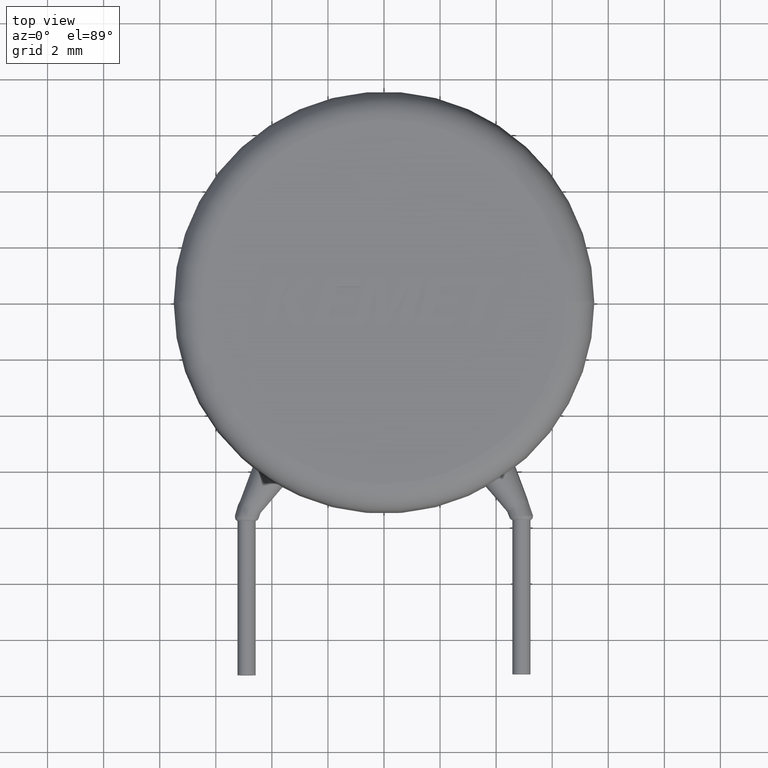
[diagram: clean part render]
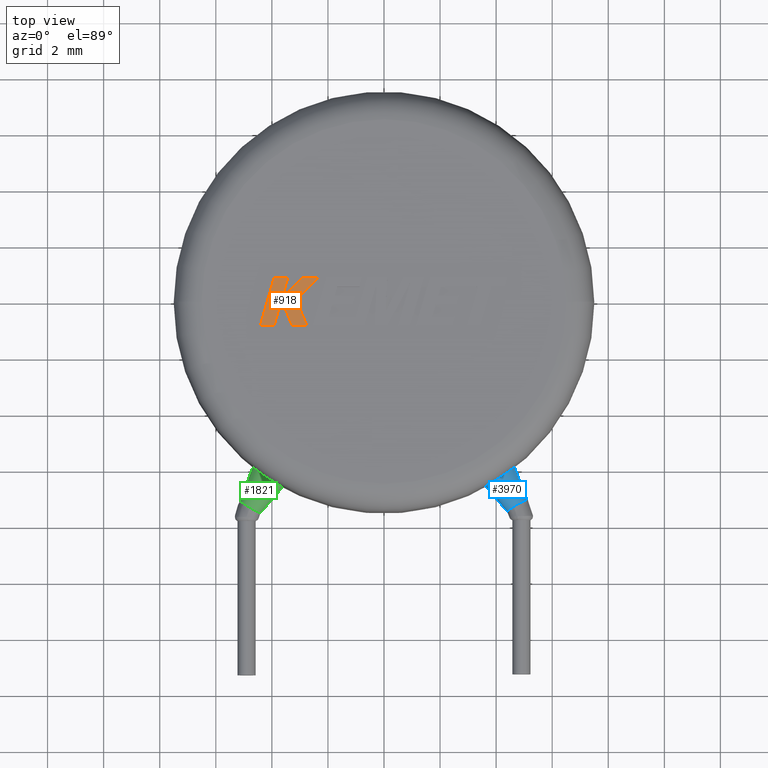
[diagram: same view with three faces highlighted in distinct colors, each labeled with its STEP entity id]
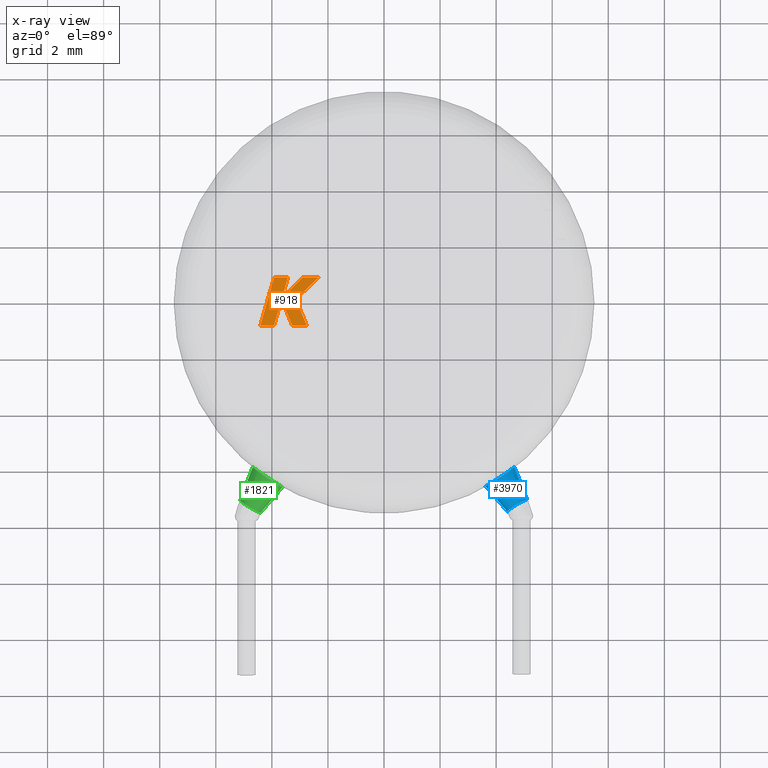
[diagram: x-ray of the same camera — body ghosted, the three highlighted faces saturated]
A machine part, top view with three faces highlighted in distinct colors.
The next image is the same camera in x-ray (body ghosted, the three faces saturated) — at least one of them is partly hidden behind the body in this view.
Their STEP definitions:

[orange] entity #918 — the highlighted planar face has unit normal (0, 0, -1).
#116 = VECTOR ( 'NONE', #1157, 1000.000000000000000 ) ;
#139 = CARTESIAN_POINT ( 'NONE',  ( -2.751700419524595500, -0.8679000000000538500, 5.004999999999999900 ) ) ;
#189 = VERTEX_POINT ( 'NONE', #1183 ) ;
#230 = EDGE_CURVE ( 'NONE', #3429, #518, #3758, .T. ) ;
#235 = DIRECTION ( 'NONE',  ( -1.000000000000000000, -0.0000000000000000000, -0.0000000000000000000 ) ) ;
#260 = ORIENTED_EDGE ( 'NONE', *, *, #230, .T. ) ;
#271 = ORIENTED_EDGE ( 'NONE', *, *, #1103, .T. ) ;
#360 = CARTESIAN_POINT ( 'NONE',  ( -3.654154969187255900, 0.07042741620789895500, 5.004999999999999900 ) ) ;
#383 = LINE ( 'NONE', #3003, #1513 ) ;
#413 = VERTEX_POINT ( 'NONE', #3333 ) ;
#491 = PLANE ( 'NONE',  #2290 ) ;
#518 = VERTEX_POINT ( 'NONE', #3739 ) ;
#526 = VERTEX_POINT ( 'NONE', #2419 ) ;
#584 = DIRECTION ( 'NONE',  ( 0.2755520632520612200, 0.9612861490927308000, 0.0000000000000000000 ) ) ;
#595 = CARTESIAN_POINT ( 'NONE',  ( -3.654154969187255900, 0.07042741620789895500, 5.004999999999999900 ) ) ;
#660 = EDGE_CURVE ( 'NONE', #3591, #2743, #3189, .T. ) ;
#673 = ORIENTED_EDGE ( 'NONE', *, *, #1021, .T. ) ;
#688 = CARTESIAN_POINT ( 'NONE',  ( -2.333900013164823800, 0.8602294998000967800, 5.004999999999999900 ) ) ;
#726 = ORIENTED_EDGE ( 'NONE', *, *, #660, .T. ) ;
#753 = ORIENTED_EDGE ( 'NONE', *, *, #3652, .T. ) ;
#843 = VECTOR ( 'NONE', #3626, 1000.000000000000100 ) ;
#889 = VECTOR ( 'NONE', #2910, 1000.000000000000100 ) ;
#918 = ADVANCED_FACE ( 'NONE', ( #1306 ), #491, .F. ) ;
#1021 = EDGE_CURVE ( 'NONE', #2743, #1027, #3947, .T. ) ;
#1023 = VECTOR ( 'NONE', #3730, 1000.000000000000000 ) ;
#1025 = CARTESIAN_POINT ( 'NONE',  ( -3.923099004398354200, -0.8679000000000538500, 5.004999999999999900 ) ) ;
#1027 = VERTEX_POINT ( 'NONE', #1997 ) ;
#1103 = EDGE_CURVE ( 'NONE', #526, #2211, #383, .T. ) ;
#1157 = DIRECTION ( 'NONE',  ( 1.000000000000000000, 2.209235782087067200E-016, 0.0000000000000000000 ) ) ;
#1183 = CARTESIAN_POINT ( 'NONE',  ( -3.140642792701694700, 0.07042741620791977100, 5.004999999999999900 ) ) ;
#1186 = EDGE_CURVE ( 'NONE', #413, #526, #2436, .T. ) ;
#1217 = EDGE_CURVE ( 'NONE', #1462, #189, #3177, .T. ) ;
#1243 = ORIENTED_EDGE ( 'NONE', *, *, #3080, .T. ) ;
#1266 = CARTESIAN_POINT ( 'NONE',  ( -3.277513515972580100, -0.8679000000000538500, 5.004999999999999900 ) ) ;
#1306 = FACE_OUTER_BOUND ( 'NONE', #1819, .T. ) ;
#1423 = LINE ( 'NONE', #688, #843 ) ;
#1462 = VERTEX_POINT ( 'NONE', #3206 ) ;
#1513 = VECTOR ( 'NONE', #3606, 1000.000000000000000 ) ;
#1562 = CARTESIAN_POINT ( 'NONE',  ( -3.923099004398354200, -0.8679000000000538500, 5.004999999999999900 ) ) ;
#1662 = VECTOR ( 'NONE', #1868, 1000.000000000000000 ) ;
#1710 = CARTESIAN_POINT ( 'NONE',  ( -3.637051381953014100, 0.1232882683385137800, 5.004999999999999900 ) ) ;
#1817 = CARTESIAN_POINT ( 'NONE',  ( -2.333900013164823800, 0.8602294998000967800, 5.004999999999999900 ) ) ;
#1819 = EDGE_LOOP ( 'NONE', ( #753, #3879, #726, #673, #4163, #3343, #1243, #260, #2595, #4042, #271 ) ) ;
#1868 = DIRECTION ( 'NONE',  ( -0.2762033010252014100, -0.9610992334315858800, -0.0000000000000000000 ) ) ;
#1905 = CARTESIAN_POINT ( 'NONE',  ( -3.425807646654831700, 0.8602294998000967800, 5.004999999999999900 ) ) ;
#1997 = CARTESIAN_POINT ( 'NONE',  ( -3.277513515972580100, -0.8679000000000538500, 5.004999999999999900 ) ) ;
#2010 = DIRECTION ( 'NONE',  ( 0.0000000000000000000, 0.0000000000000000000, -1.000000000000000000 ) ) ;
#2211 = VERTEX_POINT ( 'NONE', #2901 ) ;
#2260 = CARTESIAN_POINT ( 'NONE',  ( -3.140642792701694700, 0.07042741620791977100, 5.004999999999999900 ) ) ;
#2290 = AXIS2_PLACEMENT_3D ( 'NONE', #3942, #2010, #2351 ) ;
#2326 = VECTOR ( 'NONE', #2906, 1000.000000000000100 ) ;
#2351 = DIRECTION ( 'NONE',  ( -1.000000000000000000, 0.0000000000000000000, 0.0000000000000000000 ) ) ;
#2419 = CARTESIAN_POINT ( 'NONE',  ( -3.425807646654831700, 0.8602294998000967800, 5.004999999999999900 ) ) ;
#2436 = LINE ( 'NONE', #1905, #4049 ) ;
#2586 = VECTOR ( 'NONE', #3004, 1000.000000000000100 ) ;
#2593 = EDGE_CURVE ( 'NONE', #3406, #3591, #3630, .T. ) ;
#2595 = ORIENTED_EDGE ( 'NONE', *, *, #3873, .T. ) ;
#2622 = EDGE_CURVE ( 'NONE', #1027, #1462, #2864, .T. ) ;
#2743 = VERTEX_POINT ( 'NONE', #360 ) ;
#2824 = CARTESIAN_POINT ( 'NONE',  ( -4.414500000000000300, -0.8679000000000004500, 5.004999999999999900 ) ) ;
#2864 = LINE ( 'NONE', #139, #116 ) ;
#2890 = VECTOR ( 'NONE', #3956, 1000.000000000000200 ) ;
#2901 = CARTESIAN_POINT ( 'NONE',  ( -3.917865463377207600, 0.8602294998000965500, 5.004999999999999900 ) ) ;
#2906 = DIRECTION ( 'NONE',  ( -0.3829140317376954500, 0.9237839814038685300, 0.0000000000000000000 ) ) ;
#2910 = DIRECTION ( 'NONE',  ( 0.3725077383644746500, -0.9280290862136726400, 0.0000000000000000000 ) ) ;
#3003 = CARTESIAN_POINT ( 'NONE',  ( -3.917865463377207600, 0.8602294998000965500, 5.004999999999999900 ) ) ;
#3004 = DIRECTION ( 'NONE',  ( -0.7059037656364513000, -0.7083077534943959000, -0.0000000000000000000 ) ) ;
#3080 = EDGE_CURVE ( 'NONE', #189, #3429, #1423, .T. ) ;
#3177 = LINE ( 'NONE', #2260, #2326 ) ;
#3189 = LINE ( 'NONE', #595, #2890 ) ;
#3204 = CARTESIAN_POINT ( 'NONE',  ( -4.414500000000000300, -0.8679000000000004500, 5.004999999999999900 ) ) ;
#3206 = CARTESIAN_POINT ( 'NONE',  ( -2.751700419524595500, -0.8679000000000538500, 5.004999999999999900 ) ) ;
#3333 = CARTESIAN_POINT ( 'NONE',  ( -3.637051381953014100, 0.1232882683385137800, 5.004999999999999900 ) ) ;
#3343 = ORIENTED_EDGE ( 'NONE', *, *, #1217, .T. ) ;
#3406 = VERTEX_POINT ( 'NONE', #3204 ) ;
#3429 = VERTEX_POINT ( 'NONE', #1817 ) ;
#3591 = VERTEX_POINT ( 'NONE', #1562 ) ;
#3606 = DIRECTION ( 'NONE',  ( -1.000000000000000000, -4.721579732644703500E-016, -0.0000000000000000000 ) ) ;
#3626 = DIRECTION ( 'NONE',  ( 0.7145695586381823900, 0.6995643972270410000, 0.0000000000000000000 ) ) ;
#3630 = LINE ( 'NONE', #1025, #1023 ) ;
#3652 = EDGE_CURVE ( 'NONE', #2211, #3406, #4139, .T. ) ;
#3662 = VECTOR ( 'NONE', #235, 1000.000000000000000 ) ;
#3730 = DIRECTION ( 'NONE',  ( 1.000000000000000000, -1.089778814629034200E-013, 0.0000000000000000000 ) ) ;
#3739 = CARTESIAN_POINT ( 'NONE',  ( -2.902611320023619000, 0.8602294998000967800, 5.004999999999999900 ) ) ;
#3758 = LINE ( 'NONE', #4148, #3662 ) ;
#3873 = EDGE_CURVE ( 'NONE', #518, #413, #4092, .T. ) ;
#3879 = ORIENTED_EDGE ( 'NONE', *, *, #2593, .T. ) ;
#3942 = CARTESIAN_POINT ( 'NONE',  ( 0.05747670520601499300, 0.1583361317231066200, 5.004999999999998100 ) ) ;
#3947 = LINE ( 'NONE', #1266, #889 ) ;
#3956 = DIRECTION ( 'NONE',  ( 0.2755265765475178300, 0.9612934544747534500, 0.0000000000000000000 ) ) ;
#4042 = ORIENTED_EDGE ( 'NONE', *, *, #1186, .T. ) ;
#4049 = VECTOR ( 'NONE', #584, 1000.000000000000100 ) ;
#4092 = LINE ( 'NONE', #1710, #2586 ) ;
#4139 = LINE ( 'NONE', #2824, #1662 ) ;
#4148 = CARTESIAN_POINT ( 'NONE',  ( -2.902611320023619000, 0.8602294998000967800, 5.004999999999999900 ) ) ;
#4163 = ORIENTED_EDGE ( 'NONE', *, *, #2622, .T. ) ;

[blue] entity #3970 — the highlighted conical surface has half-angle 10 deg.
#44 = CARTESIAN_POINT ( 'NONE',  ( 4.762683337202791000, -7.262184892120668400, 3.452536667440509400 ) ) ;
#69 = ORIENTED_EDGE ( 'NONE', *, *, #2671, .T. ) ;
#337 = EDGE_CURVE ( 'NONE', #3726, #2483, #2756, .T. ) ;
#375 = VERTEX_POINT ( 'NONE', #644 ) ;
#465 = ORIENTED_EDGE ( 'NONE', *, *, #1851, .F. ) ;
#508 = CARTESIAN_POINT ( 'NONE',  ( 4.762683337202791000, -7.262184892120668400, 3.452536667440509400 ) ) ;
#644 = CARTESIAN_POINT ( 'NONE',  ( 3.647109862963031200, -6.553517349292499200, 3.119605958845583300 ) ) ;
#712 = CARTESIAN_POINT ( 'NONE',  ( 4.424744281256835200, -7.478044379995743000, 3.311728727463027600 ) ) ;
#762 = CARTESIAN_POINT ( 'NONE',  ( 4.605750986537158200, -5.919503493317686900, 3.695165098037502800 ) ) ;
#825 = AXIS2_PLACEMENT_3D ( 'NONE', #44, #2662, #3915 ) ;
#901 = DIRECTION ( 'NONE',  ( 0.5053043297099010200, -0.8570030546920391900, 0.1010608659419742300 ) ) ;
#1030 = ORIENTED_EDGE ( 'NONE', *, *, #3144, .F. ) ;
#1063 = AXIS2_PLACEMENT_3D ( 'NONE', #1611, #2228, #1925 ) ;
#1115 = CARTESIAN_POINT ( 'NONE',  ( 4.120533416744526000, -6.268631210167486100, 3.978594259563963400 ) ) ;
#1124 = CARTESIAN_POINT ( 'NONE',  ( 3.612374027167635700, -6.573132517165808200, 3.455951191580461500 ) ) ;
#1199 = CARTESIAN_POINT ( 'NONE',  ( 5.100622393148746900, -7.046325404245594700, 3.593344607417991100 ) ) ;
#1486 = CARTESIAN_POINT ( 'NONE',  ( 4.267233354258011400, -6.169548309557439900, 3.968288526069727200 ) ) ;
#1611 = CARTESIAN_POINT ( 'NONE',  ( 4.762683337202791000, -7.262184892120668400, 3.452536667440509400 ) ) ;
#1617 = B_SPLINE_CURVE_WITH_KNOTS ( 'NONE', 3,
 ( #4070, #762, #2426, #1486, #1115, #2443, #1829, #1124, #3087, #3065 ),
 .UNSPECIFIED., .F., .F.,
 ( 4, 2, 2, 2, 4 ),
 ( 0.002063555697518298700, 0.002558101677853594600, 0.003052647658188890900, 0.003547193638524185000, 0.004041739618859479200 ),
 .UNSPECIFIED. ) ;
#1714 = CONICAL_SURFACE ( 'NONE', #825, 0.4250000000000414600, 0.1745329251994329800 ) ;
#1755 = VECTOR ( 'NONE', #2144, 1000.000000000000000 ) ;
#1788 = CARTESIAN_POINT ( 'NONE',  ( 5.100622393148746900, -7.046325404245594700, 3.593344607417991100 ) ) ;
#1802 = CARTESIAN_POINT ( 'NONE',  ( 4.424744281256835200, -7.478044379995743000, 3.311728727463027600 ) ) ;
#1822 = CIRCLE ( 'NONE', #4037, 0.4250000000000414600 ) ;
#1825 = EDGE_LOOP ( 'NONE', ( #1030, #4127, #465, #2319, #69 ) ) ;
#1829 = CARTESIAN_POINT ( 'NONE',  ( 3.739494307888874500, -6.501653599019601200, 3.751686836792118100 ) ) ;
#1851 = EDGE_CURVE ( 'NONE', #3221, #3726, #1822, .T. ) ;
#1925 = DIRECTION ( 'NONE',  ( 0.7951507198727599800, 0.5079046773530662100, 0.3313127999469828700 ) ) ;
#2090 = VECTOR ( 'NONE', #2755, 1000.000000000000100 ) ;
#2144 = DIRECTION ( 'NONE',  ( -0.3595511480524950000, 0.9321799742667356000, -0.04199366035726173600 ) ) ;
#2228 = DIRECTION ( 'NONE',  ( 0.5053043297099010200, -0.8570030546920391900, 0.1010608659419742300 ) ) ;
#2319 = ORIENTED_EDGE ( 'NONE', *, *, #2602, .T. ) ;
#2426 = CARTESIAN_POINT ( 'NONE',  ( 4.511072531642090800, -5.993565838290206400, 3.825496589891172100 ) ) ;
#2443 = CARTESIAN_POINT ( 'NONE',  ( 3.855227048237050100, -6.435196756443088100, 3.870208197622752700 ) ) ;
#2483 = VERTEX_POINT ( 'NONE', #712 ) ;
#2500 = LINE ( 'NONE', #1802, #2090 ) ;
#2602 = EDGE_CURVE ( 'NONE', #3221, #2681, #3469, .T. ) ;
#2662 = DIRECTION ( 'NONE',  ( -0.5053043297099010200, 0.8570030546920391900, -0.1010608659419742300 ) ) ;
#2671 = EDGE_CURVE ( 'NONE', #2681, #375, #1617, .T. ) ;
#2681 = VERTEX_POINT ( 'NONE', #2754 ) ;
#2754 = CARTESIAN_POINT ( 'NONE',  ( 4.651915818186450800, -5.882999168834437900, 3.540938067733446500 ) ) ;
#2755 = DIRECTION ( 'NONE',  ( -0.6357040950054000400, 0.7557865309649952600, -0.1570573882543055400 ) ) ;
#2756 = CIRCLE ( 'NONE', #1063, 0.4250000000000414600 ) ;
#3065 = CARTESIAN_POINT ( 'NONE',  ( 3.647109862963031200, -6.553517349292499200, 3.119605958845583300 ) ) ;
#3087 = CARTESIAN_POINT ( 'NONE',  ( 3.601157180198992800, -6.579090560379889900, 3.276860397898824200 ) ) ;
#3144 = EDGE_CURVE ( 'NONE', #2483, #375, #2500, .T. ) ;
#3153 = DIRECTION ( 'NONE',  ( 0.7951507198727599800, 0.5079046773530662100, 0.3313127999469828700 ) ) ;
#3221 = VERTEX_POINT ( 'NONE', #1199 ) ;
#3334 = FACE_OUTER_BOUND ( 'NONE', #1825, .T. ) ;
#3469 = LINE ( 'NONE', #1788, #1755 ) ;
#3719 = CARTESIAN_POINT ( 'NONE',  ( 4.610909049078916400, -7.305135760146011800, 3.847181809815777500 ) ) ;
#3726 = VERTEX_POINT ( 'NONE', #3719 ) ;
#3915 = DIRECTION ( 'NONE',  ( 0.7951507198727599800, 0.5079046773530662100, 0.3313127999469828700 ) ) ;
#3970 = ADVANCED_FACE ( 'NONE', ( #3334 ), #1714, .T. ) ;
#4037 = AXIS2_PLACEMENT_3D ( 'NONE', #508, #901, #3153 ) ;
#4070 = CARTESIAN_POINT ( 'NONE',  ( 4.651915818186450800, -5.882999168834437900, 3.540938067733446500 ) ) ;
#4127 = ORIENTED_EDGE ( 'NONE', *, *, #337, .F. ) ;

[green] entity #1821 — the highlighted conical surface has half-angle 10 deg.
#49 = EDGE_CURVE ( 'NONE', #3081, #67, #542, .T. ) ;
#67 = VERTEX_POINT ( 'NONE', #2547 ) ;
#115 = CARTESIAN_POINT ( 'NONE',  ( -4.396582693261319900, -7.478044379995743000, 1.547463332559396900 ) ) ;
#211 = CARTESIAN_POINT ( 'NONE',  ( -4.762683337202773300, -7.262184892120668400, 1.547463332559396900 ) ) ;
#238 = DIRECTION ( 'NONE',  ( -0.8614132798621565400, 0.5079046773530657700, 0.0000000000000000000 ) ) ;
#345 = CARTESIAN_POINT ( 'NONE',  ( -5.128783981144224000, -7.046325404245591200, 1.547463332559397400 ) ) ;
#446 = EDGE_CURVE ( 'NONE', #67, #3423, #1259, .T. ) ;
#472 = ORIENTED_EDGE ( 'NONE', *, *, #49, .T. ) ;
#542 = CIRCLE ( 'NONE', #939, 0.4249999999999999300 ) ;
#790 = CARTESIAN_POINT ( 'NONE',  ( -4.305147709461153700, -6.143621574930285200, 2.319294452842859400 ) ) ;
#824 = VECTOR ( 'NONE', #3455, 1000.000000000000100 ) ;
#860 = CARTESIAN_POINT ( 'NONE',  ( -4.684701699127892000, -5.856924960266114900, 1.674451367128278100 ) ) ;
#922 = ORIENTED_EDGE ( 'NONE', *, *, #446, .T. ) ;
#929 = LINE ( 'NONE', #3980, #824 ) ;
#939 = AXIS2_PLACEMENT_3D ( 'NONE', #1212, #1246, #3519 ) ;
#993 = DIRECTION ( 'NONE',  ( 0.5053043297098985800, 0.8570030546920391900, 0.1010608659419857900 ) ) ;
#1033 = DIRECTION ( 'NONE',  ( -0.02749941255923501000, -0.1010608659419803500, 0.9945001174881549200 ) ) ;
#1166 = ORIENTED_EDGE ( 'NONE', *, *, #1777, .F. ) ;
#1180 = CARTESIAN_POINT ( 'NONE',  ( -4.687150615465404800, -5.854966177695876800, 1.844296682907926400 ) ) ;
#1212 = CARTESIAN_POINT ( 'NONE',  ( -4.762683337202775900, -7.262184892120665800, 1.547463332559428900 ) ) ;
#1246 = DIRECTION ( 'NONE',  ( 0.5053043297098985800, 0.8570030546920391900, 0.1010608659419857900 ) ) ;
#1249 = ORIENTED_EDGE ( 'NONE', *, *, #1691, .T. ) ;
#1250 = VECTOR ( 'NONE', #2076, 1000.000000000000100 ) ;
#1259 = CIRCLE ( 'NONE', #3540, 0.4249999999999999300 ) ;
#1275 = EDGE_LOOP ( 'NONE', ( #472, #922, #1249, #2530, #1166 ) ) ;
#1280 = VERTEX_POINT ( 'NONE', #3568 ) ;
#1325 = B_SPLINE_CURVE_WITH_KNOTS ( 'NONE', 3,
 ( #1537, #3390, #1784, #2762, #1523, #790, #1852, #3785, #1180, #860 ),
 .UNSPECIFIED., .F., .F.,
 ( 4, 2, 2, 2, 4 ),
 ( 0.001441766067671004600, 0.001946938043811857000, 0.002452110019952709200, 0.002957281996093561800, 0.003462453972234414400 ),
 .UNSPECIFIED. ) ;
#1523 = CARTESIAN_POINT ( 'NONE',  ( -4.024936755965574000, -6.330739843549474200, 2.317036920181258200 ) ) ;
#1537 = CARTESIAN_POINT ( 'NONE',  ( -3.618457518115921100, -6.569380883278908500, 1.667120414583169300 ) ) ;
#1691 = EDGE_CURVE ( 'NONE', #3423, #2256, #3282, .T. ) ;
#1777 = EDGE_CURVE ( 'NONE', #3081, #1280, #929, .T. ) ;
#1784 = CARTESIAN_POINT ( 'NONE',  ( -3.675086095406115300, -6.538963629401451700, 2.005088341642753000 ) ) ;
#1821 = ADVANCED_FACE ( 'NONE', ( #2783 ), #3279, .T. ) ;
#1852 = CARTESIAN_POINT ( 'NONE',  ( -4.442409931268846500, -6.043954530802733600, 2.251222538148423000 ) ) ;
#1953 = CARTESIAN_POINT ( 'NONE',  ( -3.618457518115921100, -6.569380883278908500, 1.667120414583169300 ) ) ;
#2076 = DIRECTION ( 'NONE',  ( 0.6472104677951021600, 0.7557865309649952600, 0.09952552430579492100 ) ) ;
#2160 = DIRECTION ( 'NONE',  ( 0.5053043297098986900, 0.8570030546920391900, 0.1010608659419856800 ) ) ;
#2256 = VERTEX_POINT ( 'NONE', #1953 ) ;
#2530 = ORIENTED_EDGE ( 'NONE', *, *, #3580, .T. ) ;
#2547 = CARTESIAN_POINT ( 'NONE',  ( -4.774370587540450300, -7.305135760146007400, 1.970125882491894800 ) ) ;
#2762 = CARTESIAN_POINT ( 'NONE',  ( -3.881706589240108100, -6.418462207595545100, 2.247435445720374200 ) ) ;
#2783 = FACE_OUTER_BOUND ( 'NONE', #1275, .T. ) ;
#2953 = CARTESIAN_POINT ( 'NONE',  ( -4.762683337202775900, -7.262184892120665800, 1.547463332559428900 ) ) ;
#3081 = VERTEX_POINT ( 'NONE', #345 ) ;
#3279 = CONICAL_SURFACE ( 'NONE', #3383, 0.4250000000000417900, 0.1745329251994329800 ) ;
#3282 = LINE ( 'NONE', #115, #1250 ) ;
#3383 = AXIS2_PLACEMENT_3D ( 'NONE', #211, #2160, #238 ) ;
#3390 = CARTESIAN_POINT ( 'NONE',  ( -3.615808581766689400, -6.570839934568256000, 1.835885461010103900 ) ) ;
#3423 = VERTEX_POINT ( 'NONE', #3562 ) ;
#3455 = DIRECTION ( 'NONE',  ( 0.3480447752627883200, 0.9321799742667354900, 0.09952552430579489400 ) ) ;
#3519 = DIRECTION ( 'NONE',  ( -0.02749941255923501000, -0.1010608659419803500, 0.9945001174881549200 ) ) ;
#3540 = AXIS2_PLACEMENT_3D ( 'NONE', #2953, #993, #1033 ) ;
#3562 = CARTESIAN_POINT ( 'NONE',  ( -4.396582693261318100, -7.478044379995740300, 1.547463332559397400 ) ) ;
#3568 = CARTESIAN_POINT ( 'NONE',  ( -4.684701699127892000, -5.856924960266114900, 1.674451367128278100 ) ) ;
#3580 = EDGE_CURVE ( 'NONE', #2256, #1280, #1325, .T. ) ;
#3785 = CARTESIAN_POINT ( 'NONE',  ( -4.633443028777706200, -5.898779370930754800, 2.013394869325053600 ) ) ;
#3980 = CARTESIAN_POINT ( 'NONE',  ( -5.128783981144225700, -7.046325404245594700, 1.547463332559396900 ) ) ;